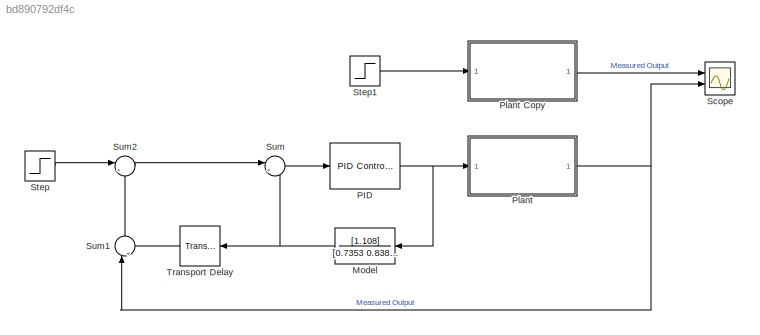
MODEL slx_bd890792df4c
KIND model
CONFIG AbsTol = auto
CONFIG EnableMultiTasking = off
CONFIG FixedStep = auto
CONFIG MaxStep = auto
CONFIG MinStep = auto
CONFIG RelTol = 1e-3
CONFIG SampleTimeConstraint = Unconstrained
CONFIG Solver = VariableStepAuto
CONFIG SolverName = VariableStepAuto
CONFIG StartTime = 0.0
CONFIG StopTime = 25
BLOCK [TransferFcn] Model
  Denominator = [0.7353 0.8386 1]
  Numerator = [1.108]
BLOCK [Reference] PID  REF=simulink/Continuous/PID Controller
  Ports = [1, 1]
  SourceBlock = simulink/Continuous/PID Controller
  SourceProductBaseCode = SL
  SourceProductName = Simulink
  SourceType = PID 1dof
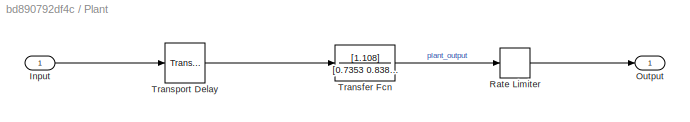
BLOCK [SubSystem] Plant
  Ports = [1, 1]
  RequestExecContextInheritance = off
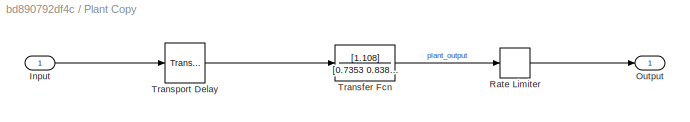
BLOCK [SubSystem] Plant Copy
  Ports = [1, 1]
  RequestExecContextInheritance = off
BLOCK [Inport] Plant Copy/Input
  IconDisplay = Port number
BLOCK [Outport] Plant Copy/Output
  IconDisplay = Port number
BLOCK [RateLimiter] Plant Copy/Rate Limiter
  FallingSlewLimit = -0.657875
  RisingSlewLimit = 0.657875
  SampleTimeMode = inherited
BLOCK [TransferFcn] Plant Copy/Transfer Fcn
  Denominator = [0.7353 0.8386 1]
  Numerator = [1.108]
BLOCK [TransportDelay] Plant Copy/Transport Delay
  DelayTime = 0.45
  Ports = [1, 1]
BLOCK [Inport] Plant/Input
  IconDisplay = Port number
BLOCK [Outport] Plant/Output
  IconDisplay = Port number
BLOCK [RateLimiter] Plant/Rate Limiter
  FallingSlewLimit = -0.657875
  RisingSlewLimit = 0.657875
  SampleTimeMode = inherited
BLOCK [TransferFcn] Plant/Transfer Fcn
  Denominator = [0.7353 0.8386 1]
  Numerator = [1.108]
BLOCK [TransportDelay] Plant/Transport Delay
  DelayTime = 0.45
  Ports = [1, 1]
BLOCK [Scope] Scope
  Floating = off
  NumInputPorts = 2
  Ports = [2]
  ScopeSpecificationString = Simulink.scopes.TimeScopeBlockCfg('CurrentConfiguration', extmgr.ConfigurationSet(extmgr.Configuration('Core','General UI',true),extmgr.Configuration('Core','Source UI',true),extmgr.Configuration('Sources','WiredSimulink',true),extmgr.Configuration('Visuals','Time Domain',true,'SerializedDisplays',{struct('MinYLimReal','-0.16246','MaxYLimReal','1.46213','YLabelReal','','MinYLimMag','0.00000','MaxY...<+1384ch>
BLOCK [Step] Step
  After = 1.108
  SampleTime = 0
BLOCK [Step] Step1
  SampleTime = 0
BLOCK [Sum] Sum
  IconShape = round
  InputSameDT = off
  Inputs = |+-
  OutDataTypeStr = Inherit: Inherit via internal rule
  Ports = [2, 1]
  SaturateOnIntegerOverflow = off
BLOCK [Sum] Sum1
  IconShape = round
  InputSameDT = off
  Inputs = |+-
  OutDataTypeStr = Inherit: Inherit via internal rule
  Ports = [2, 1]
  SaturateOnIntegerOverflow = off
BLOCK [Sum] Sum2
  IconShape = round
  InputSameDT = off
  Inputs = |+-
  OutDataTypeStr = Inherit: Inherit via internal rule
  Ports = [2, 1]
  SaturateOnIntegerOverflow = off
BLOCK [TransportDelay] Transport Delay
  DelayTime = 0.45
  Ports = [1, 1]
NET Model:1 -> Sum:2, Transport Delay:1
NET PID:1 -> Model:1, Plant:1
LINE Plant Copy/Input:1 -> Plant Copy/Transport Delay:1
LINE Plant Copy/Rate Limiter:1 -> Plant Copy/Output:1
LINE Plant Copy/Transfer Fcn:1 -> Plant Copy/Rate Limiter:1
LINE Plant Copy/Transport Delay:1 -> Plant Copy/Transfer Fcn:1
LINE Plant Copy:1 -> Scope:1
LINE Plant/Input:1 -> Plant/Transport Delay:1
LINE Plant/Rate Limiter:1 -> Plant/Output:1
LINE Plant/Transfer Fcn:1 -> Plant/Rate Limiter:1
LINE Plant/Transport Delay:1 -> Plant/Transfer Fcn:1
NET Plant:1 -> Scope:2, Sum1:1
LINE Step1:1 -> Plant Copy:1
LINE Step:1 -> Sum2:1
LINE Sum1:1 -> Sum2:2
LINE Sum2:1 -> Sum:1
LINE Sum:1 -> PID:1
LINE Transport Delay:1 -> Sum1:2
note: NET lines group one-source signal fan-out (src -> all destinations, sorted); 1:1 wires keep LINE
